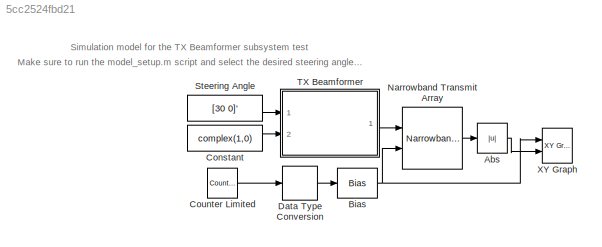
MODEL slx_5cc2524fbd21
KIND model
CONFIG AbsTol = auto
CONFIG EnableMultiTasking = off
CONFIG FixedStep = auto
CONFIG MaxStep = auto
CONFIG MinStep = auto
CONFIG RelTol = 1e-3
CONFIG SampleTimeConstraint = Unconstrained
CONFIG SolverName = VariableStepAuto
CONFIG StartTime = 0.0
CONFIG StopTime = 180*system.step
BLOCK [Abs] Abs
  SaturateOnIntegerOverflow = off
BLOCK [Bias] Bias
  Bias = -90
  SaturateOnIntegerOverflow = off
BLOCK [Constant] Constant
  Value = complex(1,0)
BLOCK [Reference] Counter Limited  REF=simulink/Sources/Counter
Limited
  Ports = [0, 1]
  SourceBlock = simulink/Sources/Counter\nLimited
  SourceProductBaseCode = SL
  SourceType = Counter Limited
BLOCK [DataTypeConversion] Data Type Conversion
  RndMeth = Floor
  SaturateOnIntegerOverflow = off
BLOCK [Reference] Narrowband Transmit Array  REF=phasedtxrxlib/Narrowband Transmit Array
  Ports = [2, 1]
  SourceBlock = phasedtxrxlib/Narrowband Transmit Array
  SourceProductBaseCode = AR
  SourceType = phased.Radiator
BLOCK [Constant] Steering Angle
  NameLocation = top
  Value = [30 0]'
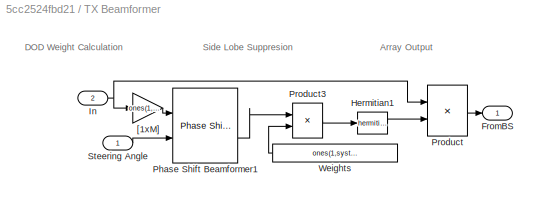
BLOCK [SubSystem] TX Beamformer
  NameLocation = top
  Ports = [2, 1]
  RequestExecContextInheritance = off
BLOCK [Outport] TX Beamformer/FromBS
BLOCK [Math] TX Beamformer/Hermitian1
  Operator = hermitian
  Ports = [1, 1]
BLOCK [Inport] TX Beamformer/In
  Port = 2
BLOCK [Reference] TX Beamformer/Phase Shift Beamformer1  REF=phasedbflib/Phase Shift Beamformer
  Ports = [2, 2]
  SourceBlock = phasedbflib/Phase Shift Beamformer
  SourceProductBaseCode = AR
  SourceType = phased.PhaseShiftBeamformer
BLOCK [Product] TX Beamformer/Product
  Multiplication = Matrix(*)
  Ports = [2, 1]
BLOCK [Product] TX Beamformer/Product3
  Ports = [2, 1]
BLOCK [Inport] TX Beamformer/Steering Angle
BLOCK [Constant] TX Beamformer/Weights
  SampleTime = system.step
  Value = ones(1,system.n_antennas)
BLOCK [Gain] TX Beamformer/[1xM]
  Gain = ones(1,system.n_antennas)
  Multiplication = Matrix(u*K)
BLOCK [Reference] XY Graph  REF=simulink/Sinks/XY Graph
  Ports = [2]
  SourceBlock = simulink/Sinks/XY Graph
  SourceProductBaseCode = SL
  SourceType = XY scope.
ANNOTATION (root): Make sure to run the model_setup.m script and select the desired steering angle in the block
ANNOTATION (root): Simulation model for the TX Beamformer subsystem test
ANNOTATION TX Beamformer: Array Output
ANNOTATION TX Beamformer: DOD Weight Calculation
ANNOTATION TX Beamformer: Side Lobe Suppresion
LINE Abs:1 -> XY Graph:2
NET Bias:1 -> Narrowband Transmit Array:2, XY Graph:1
LINE Constant:1 -> TX Beamformer:2
LINE Counter Limited:1 -> Data Type Conversion:1
LINE Data Type Conversion:1 -> Bias:1
LINE Narrowband Transmit Array:1 -> Abs:1
LINE Steering Angle:1 -> TX Beamformer:1
LINE TX Beamformer/Hermitian1:1 -> TX Beamformer/Product:2
NET TX Beamformer/In:1 -> TX Beamformer/Product:1, TX Beamformer/[1xM]:1
LINE TX Beamformer/Phase Shift Beamformer1:2 -> TX Beamformer/Product3:1
LINE TX Beamformer/Product3:1 -> TX Beamformer/Hermitian1:1
LINE TX Beamformer/Product:1 -> TX Beamformer/FromBS:1
LINE TX Beamformer/Steering Angle:1 -> TX Beamformer/Phase Shift Beamformer1:2
LINE TX Beamformer/Weights:1 -> TX Beamformer/Product3:2
LINE TX Beamformer/[1xM]:1 -> TX Beamformer/Phase Shift Beamformer1:1
LINE TX Beamformer:1 -> Narrowband Transmit Array:1
note: NET lines group one-source signal fan-out (src -> all destinations, sorted); 1:1 wires keep LINE
